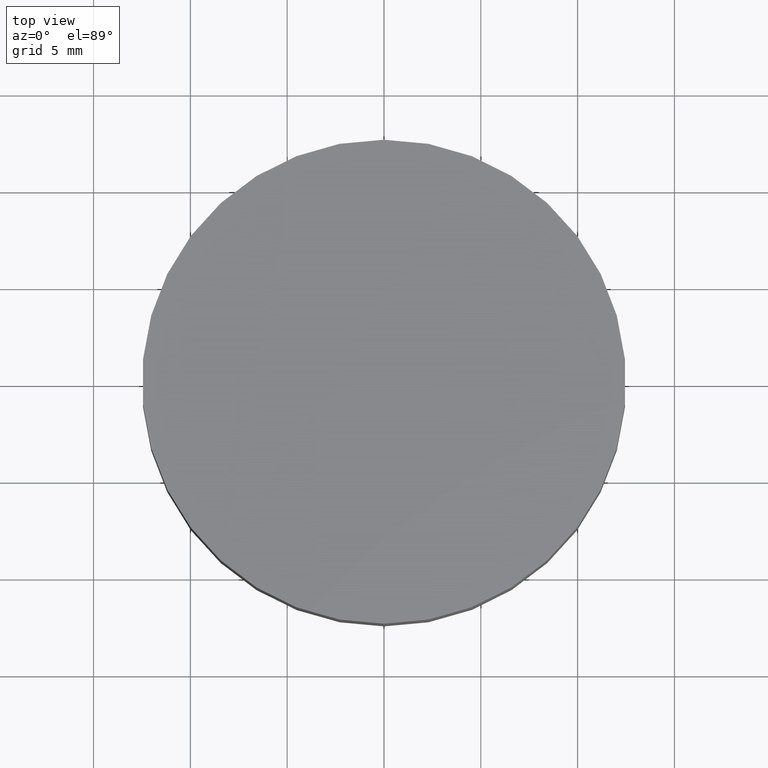
[diagram: clean part render]
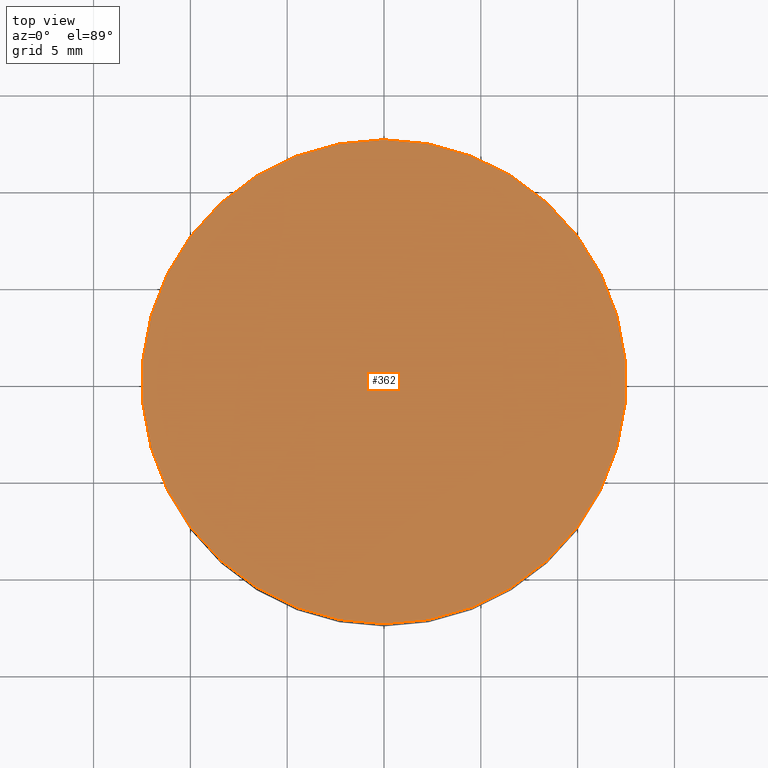
[diagram: same view with one face highlighted and labeled with its STEP entity id]
A machine part, top view. The second image highlights one B-rep face of the part: STEP entity #362.
In plain terms, the highlighted planar face has unit normal (0, 0, 1).
Its self-contained STEP definition (entity closure, byte-faithful):
#45 = ORIENTED_EDGE ( 'NONE', *, *, #1076, .F. ) ;
#49 = VERTEX_POINT ( 'NONE', #497 ) ;
#67 = VERTEX_POINT ( 'NONE', #485 ) ;
#138 = EDGE_LOOP ( 'NONE', ( #1073, #45 ) ) ;
#146 = DIRECTION ( 'NONE',  ( 1.000000000000000000, 0.000000000000000000, 0.000000000000000000 ) ) ;
#162 = CARTESIAN_POINT ( 'NONE',  ( 0.000000000000000000, 0.000000000000000000, 13.50000000000000000 ) ) ;
#164 = CIRCLE ( 'NONE', #689, 12.50000000000000000 ) ;
#219 = AXIS2_PLACEMENT_3D ( 'NONE', #1028, #346, #927 ) ;
#226 = CARTESIAN_POINT ( 'NONE',  ( 0.000000000000000000, 0.000000000000000000, 13.50000000000000000 ) ) ;
#232 = DIRECTION ( 'NONE',  ( 0.000000000000000000, 0.000000000000000000, 1.000000000000000000 ) ) ;
#346 = DIRECTION ( 'NONE',  ( 0.000000000000000000, 0.000000000000000000, -1.000000000000000000 ) ) ;
#362 = ADVANCED_FACE ( 'NONE', ( #646 ), #404, .T. ) ;
#404 = PLANE ( 'NONE',  #755 ) ;
#485 = CARTESIAN_POINT ( 'NONE',  ( 1.530808498934191521E-15, -12.50000000000000000, 13.50000000000000000 ) ) ;
#497 = CARTESIAN_POINT ( 'NONE',  ( 0.000000000000000000, 12.50000000000000000, 13.50000000000000000 ) ) ;
#581 = EDGE_CURVE ( 'NONE', #49, #67, #164, .T. ) ;
#646 = FACE_OUTER_BOUND ( 'NONE', #138, .T. ) ;
#660 = DIRECTION ( 'NONE',  ( 0.000000000000000000, 1.000000000000000000, 0.000000000000000000 ) ) ;
#689 = AXIS2_PLACEMENT_3D ( 'NONE', #162, #1079, #660 ) ;
#755 = AXIS2_PLACEMENT_3D ( 'NONE', #226, #232, #146 ) ;
#900 = CIRCLE ( 'NONE', #219, 12.50000000000000000 ) ;
#927 = DIRECTION ( 'NONE',  ( 0.000000000000000000, 1.000000000000000000, 0.000000000000000000 ) ) ;
#1028 = CARTESIAN_POINT ( 'NONE',  ( 0.000000000000000000, 0.000000000000000000, 13.50000000000000000 ) ) ;
#1073 = ORIENTED_EDGE ( 'NONE', *, *, #581, .F. ) ;
#1076 = EDGE_CURVE ( 'NONE', #67, #49, #900, .T. ) ;
#1079 = DIRECTION ( 'NONE',  ( 0.000000000000000000, 0.000000000000000000, -1.000000000000000000 ) ) ;